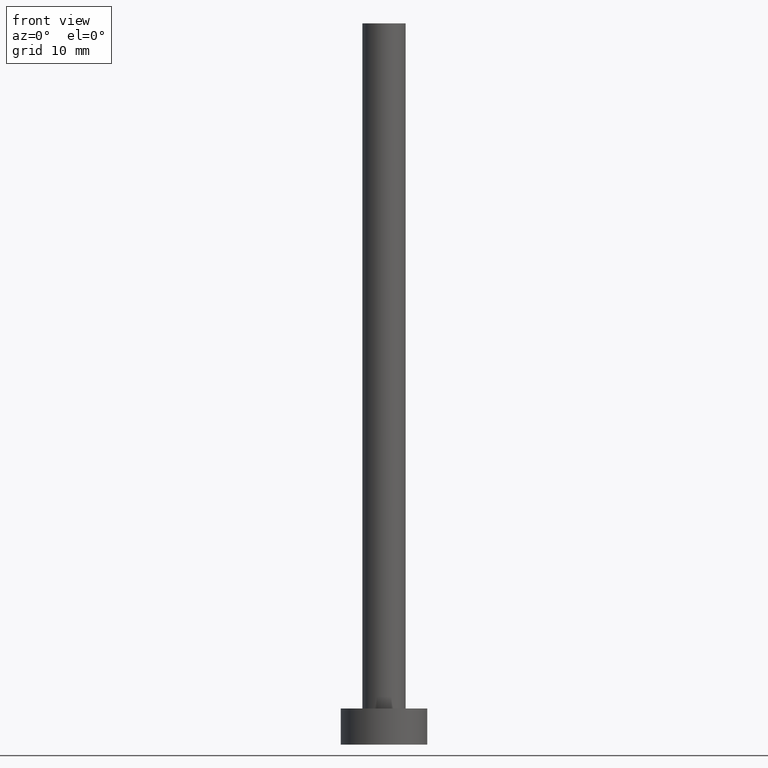
[diagram: clean part render]
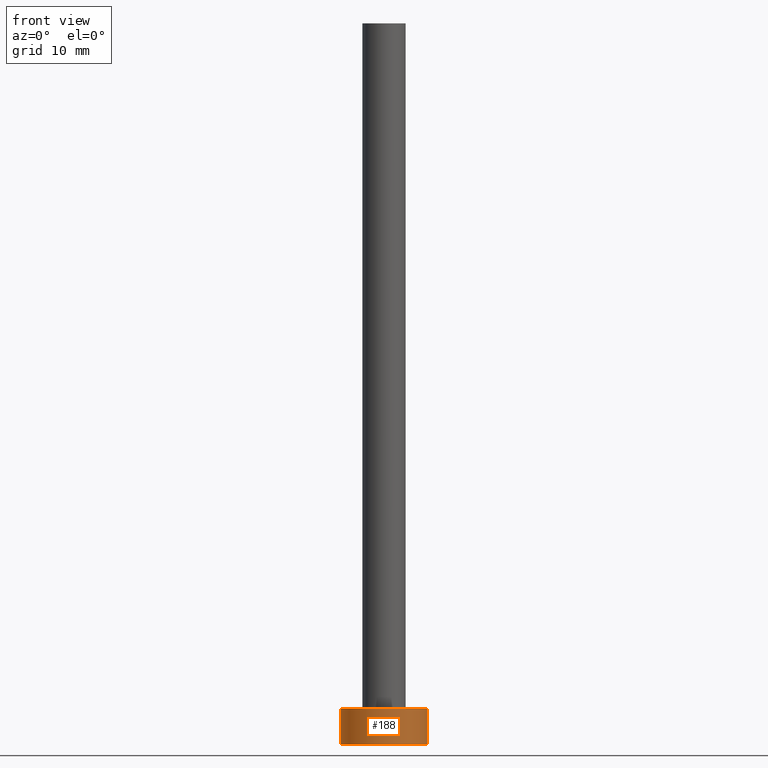
[diagram: same view with one face highlighted and labeled with its STEP entity id]
A machine part, front view. The second image highlights one B-rep face of the part: STEP entity #188.
In plain terms, the highlighted cylindrical surface (partial cylindrical patch) has radius 6 mm, axis along (-0, -0, -1).
Its self-contained STEP definition (entity closure, byte-faithful):
#5 = DIRECTION ( 'NONE',  ( -0.000000000000000000, -0.000000000000000000, -1.000000000000000000 ) ) ;
#8 = ORIENTED_EDGE ( 'NONE', *, *, #140, .F. ) ;
#11 = CARTESIAN_POINT ( 'NONE',  ( 0.000000000000000000, 0.000000000000000000, 5.000000000000000000 ) ) ;
#14 = ORIENTED_EDGE ( 'NONE', *, *, #104, .F. ) ;
#20 = CIRCLE ( 'NONE', #80, 6.000000000000000888 ) ;
#44 = ORIENTED_EDGE ( 'NONE', *, *, #203, .T. ) ;
#48 = CARTESIAN_POINT ( 'NONE',  ( 6.000000000000000888, 7.347880794884120722E-16, 5.000000000000000000 ) ) ;
#56 = VERTEX_POINT ( 'NONE', #113 ) ;
#59 = VERTEX_POINT ( 'NONE', #222 ) ;
#67 = CIRCLE ( 'NONE', #97, 6.000000000000000888 ) ;
#68 = DIRECTION ( 'NONE',  ( 1.000000000000000000, 0.000000000000000000, 0.000000000000000000 ) ) ;
#69 = CYLINDRICAL_SURFACE ( 'NONE', #220, 6.000000000000000888 ) ;
#73 = VECTOR ( 'NONE', #5, 1000.000000000000000 ) ;
#76 = EDGE_LOOP ( 'NONE', ( #14, #8, #239, #44 ) ) ;
#80 = AXIS2_PLACEMENT_3D ( 'NONE', #118, #192, #212 ) ;
#81 = VERTEX_POINT ( 'NONE', #204 ) ;
#88 = CARTESIAN_POINT ( 'NONE',  ( -6.000000000000000888, 0.000000000000000000, 0.000000000000000000 ) ) ;
#97 = AXIS2_PLACEMENT_3D ( 'NONE', #123, #156, #68 ) ;
#104 = EDGE_CURVE ( 'NONE', #59, #56, #132, .T. ) ;
#113 = CARTESIAN_POINT ( 'NONE',  ( 6.000000000000000888, 7.347880794884120722E-16, 0.000000000000000000 ) ) ;
#117 = LINE ( 'NONE', #211, #193 ) ;
#118 = CARTESIAN_POINT ( 'NONE',  ( 0.000000000000000000, 0.000000000000000000, 0.000000000000000000 ) ) ;
#123 = CARTESIAN_POINT ( 'NONE',  ( 0.000000000000000000, 0.000000000000000000, 5.000000000000000000 ) ) ;
#132 = LINE ( 'NONE', #48, #73 ) ;
#134 = FACE_OUTER_BOUND ( 'NONE', #76, .T. ) ;
#137 = DIRECTION ( 'NONE',  ( -0.000000000000000000, -0.000000000000000000, -1.000000000000000000 ) ) ;
#140 = EDGE_CURVE ( 'NONE', #81, #59, #67, .T. ) ;
#156 = DIRECTION ( 'NONE',  ( 0.000000000000000000, 0.000000000000000000, 1.000000000000000000 ) ) ;
#167 = EDGE_CURVE ( 'NONE', #81, #198, #117, .T. ) ;
#188 = ADVANCED_FACE ( 'NONE', ( #134 ), #69, .T. ) ;
#192 = DIRECTION ( 'NONE',  ( 0.000000000000000000, 0.000000000000000000, 1.000000000000000000 ) ) ;
#193 = VECTOR ( 'NONE', #137, 1000.000000000000000 ) ;
#198 = VERTEX_POINT ( 'NONE', #88 ) ;
#203 = EDGE_CURVE ( 'NONE', #198, #56, #20, .T. ) ;
#204 = CARTESIAN_POINT ( 'NONE',  ( -6.000000000000000888, 0.000000000000000000, 5.000000000000000000 ) ) ;
#211 = CARTESIAN_POINT ( 'NONE',  ( -6.000000000000000888, 0.000000000000000000, 5.000000000000000000 ) ) ;
#212 = DIRECTION ( 'NONE',  ( 1.000000000000000000, 0.000000000000000000, 0.000000000000000000 ) ) ;
#214 = DIRECTION ( 'NONE',  ( -0.000000000000000000, -0.000000000000000000, -1.000000000000000000 ) ) ;
#220 = AXIS2_PLACEMENT_3D ( 'NONE', #11, #214, #229 ) ;
#222 = CARTESIAN_POINT ( 'NONE',  ( 6.000000000000000888, 7.347880794884120722E-16, 5.000000000000000000 ) ) ;
#229 = DIRECTION ( 'NONE',  ( -1.000000000000000000, 0.000000000000000000, 0.000000000000000000 ) ) ;
#239 = ORIENTED_EDGE ( 'NONE', *, *, #167, .T. ) ;